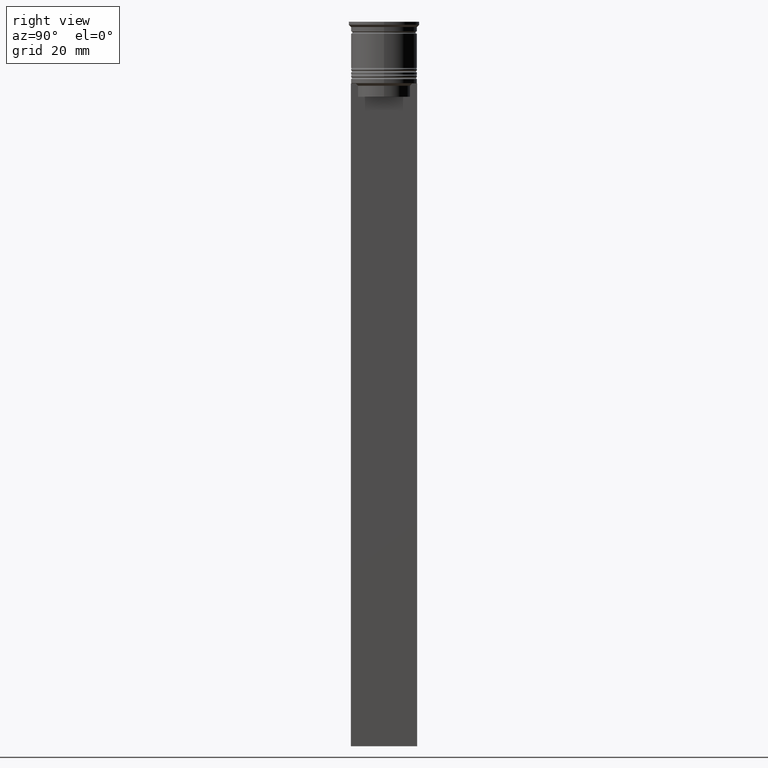
[diagram: clean part render]
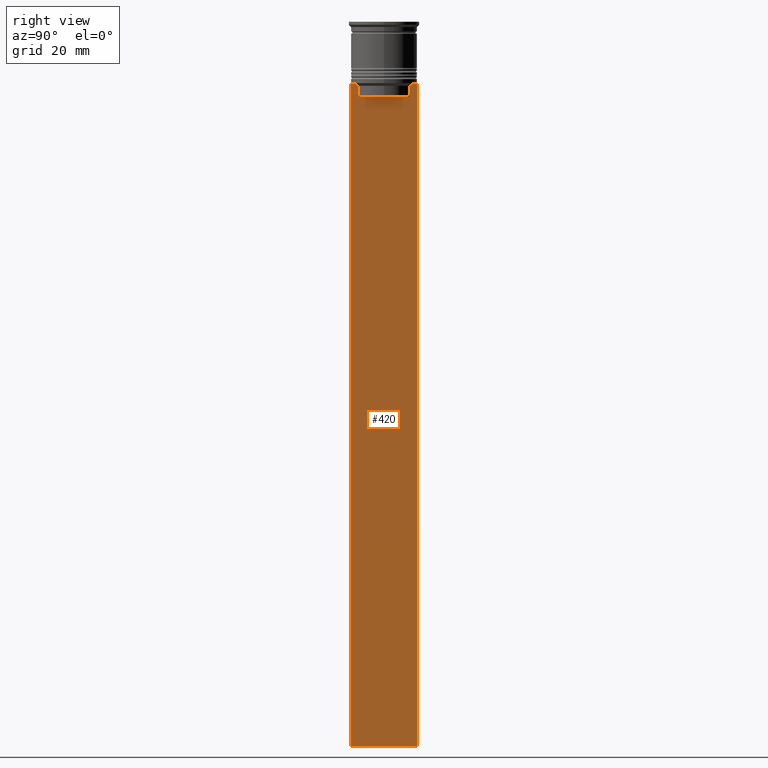
[diagram: same view with one face highlighted and labeled with its STEP entity id]
A machine part, right view. The second image highlights one B-rep face of the part: STEP entity #420.
In plain terms, the highlighted planar face has unit normal (-1, 0, 0).
Its self-contained STEP definition (entity closure, byte-faithful):
#15 = CARTESIAN_POINT ( 'NONE',  ( 0.5000000000000000000, 5.899999999999998579, -17.00000000000000000 ) ) ;
#18 = DIRECTION ( 'NONE',  ( -1.000000000000000000, 0.000000000000000000, 0.000000000000000000 ) ) ;
#20 = CARTESIAN_POINT ( 'NONE',  ( 0.5000000000000000000, -6.213239311785844876, -14.16668851110870087 ) ) ;
#115 = CARTESIAN_POINT ( 'NONE',  ( 0.5000000000000000000, -7.499999999999999112, -163.9999999999999716 ) ) ;
#116 = VECTOR ( 'NONE', #2367, 1000.000000000000000 ) ;
#171 = CARTESIAN_POINT ( 'NONE',  ( 0.5000000000000000000, -7.499999999999999112, 1.033296378372908997 ) ) ;
#180 = CARTESIAN_POINT ( 'NONE',  ( 0.5000000000000000000, 7.500000000000002665, -14.00000000000000178 ) ) ;
#215 = CARTESIAN_POINT ( 'NONE',  ( 0.5000000000000000000, -5.878775382679625849, -17.00000000000000000 ) ) ;
#222 = LINE ( 'NONE', #1204, #2312 ) ;
#225 = CARTESIAN_POINT ( 'NONE',  ( 0.5000000000000000000, -7.383088784512886527, -14.00000000000000178 ) ) ;
#245 = DIRECTION ( 'NONE',  ( 0.000000000000000000, -1.000000000000000000, 0.000000000000000000 ) ) ;
#250 = EDGE_CURVE ( 'NONE', #1683, #279, #388, .T. ) ;
#279 = VERTEX_POINT ( 'NONE', #555 ) ;
#316 = ORIENTED_EDGE ( 'NONE', *, *, #2303, .T. ) ;
#335 = VERTEX_POINT ( 'NONE', #1325 ) ;
#345 = DIRECTION ( 'NONE',  ( 0.000000000000000000, -1.000000000000000000, 0.000000000000000000 ) ) ;
#360 = CARTESIAN_POINT ( 'NONE',  ( 0.5000000000000000000, -7.499999999999999112, -14.00000000000000178 ) ) ;
#381 = DIRECTION ( 'NONE',  ( 0.000000000000000000, 0.000000000000000000, -1.000000000000000000 ) ) ;
#388 = LINE ( 'NONE', #2266, #2120 ) ;
#393 = CARTESIAN_POINT ( 'NONE',  ( 0.5000000000000000000, -6.046019991840948293, -14.33335703538585726 ) ) ;
#420 = ADVANCED_FACE ( 'NONE', ( #2149 ), #425, .F. ) ;
#425 = PLANE ( 'NONE',  #1588 ) ;
#431 = ORIENTED_EDGE ( 'NONE', *, *, #861, .T. ) ;
#449 = VERTEX_POINT ( 'NONE', #655 ) ;
#504 = LINE ( 'NONE', #115, #548 ) ;
#522 = CARTESIAN_POINT ( 'NONE',  ( 0.5000000000000000000, -7.499999999999999112, -163.9999999999999716 ) ) ;
#540 = ORIENTED_EDGE ( 'NONE', *, *, #250, .T. ) ;
#548 = VECTOR ( 'NONE', #2438, 1000.000000000000000 ) ;
#555 = CARTESIAN_POINT ( 'NONE',  ( 0.5000000000000000000, -5.878775382679625849, -14.50000000000000000 ) ) ;
#570 = CARTESIAN_POINT ( 'NONE',  ( 0.5000000000000000000, 6.213239387491007015, -14.16668843563492430 ) ) ;
#591 = EDGE_CURVE ( 'NONE', #1172, #1858, #504, .T. ) ;
#639 = CARTESIAN_POINT ( 'NONE',  ( 0.5000000000000000000, -7.499999999999999112, -14.00000000000000178 ) ) ;
#655 = CARTESIAN_POINT ( 'NONE',  ( 0.5000000000000000000, 6.380438856379706536, -14.00000000000000178 ) ) ;
#685 = ORIENTED_EDGE ( 'NONE', *, *, #2307, .T. ) ;
#834 = CARTESIAN_POINT ( 'NONE',  ( 0.5000000000000000000, -5.878775382679625849, -14.50000000000000000 ) ) ;
#861 = EDGE_CURVE ( 'NONE', #1855, #1683, #1733, .T. ) ;
#922 = LINE ( 'NONE', #1156, #1750 ) ;
#926 = ORIENTED_EDGE ( 'NONE', *, *, #1495, .T. ) ;
#956 = ORIENTED_EDGE ( 'NONE', *, *, #1418, .T. ) ;
#1004 = CARTESIAN_POINT ( 'NONE',  ( 0.5000000000000000000, 7.500000000000002665, 1.033296378372908997 ) ) ;
#1026 = ORIENTED_EDGE ( 'NONE', *, *, #2326, .T. ) ;
#1052 = CARTESIAN_POINT ( 'NONE',  ( 0.5000000000000000000, 7.500000000000002665, -163.9999999999999716 ) ) ;
#1090 = LINE ( 'NONE', #2452, #1873 ) ;
#1140 = LINE ( 'NONE', #360, #2322 ) ;
#1151 = CARTESIAN_POINT ( 'NONE',  ( 0.5000000000000000000, -7.499999999999999112, -14.00000000000000178 ) ) ;
#1156 = CARTESIAN_POINT ( 'NONE',  ( 0.5000000000000000000, 5.878775382679625849, 0.000000000000000000 ) ) ;
#1172 = VERTEX_POINT ( 'NONE', #522 ) ;
#1204 = CARTESIAN_POINT ( 'NONE',  ( 0.5000000000000000000, -7.499999999999999112, -14.00000000000000178 ) ) ;
#1206 = LINE ( 'NONE', #1004, #1642 ) ;
#1247 = ORIENTED_EDGE ( 'NONE', *, *, #1861, .T. ) ;
#1325 = CARTESIAN_POINT ( 'NONE',  ( 0.5000000000000000000, -6.380438856379706536, -14.00000000000000178 ) ) ;
#1363 = VERTEX_POINT ( 'NONE', #1151 ) ;
#1415 = EDGE_CURVE ( 'NONE', #279, #335, #1481, .T. ) ;
#1418 = EDGE_CURVE ( 'NONE', #335, #1994, #222, .T. ) ;
#1427 = ORIENTED_EDGE ( 'NONE', *, *, #1415, .T. ) ;
#1428 = VECTOR ( 'NONE', #245, 1000.000000000000000 ) ;
#1481 = B_SPLINE_CURVE_WITH_KNOTS ( 'NONE', 3,
 ( #834, #393, #20, #1593 ),
 .UNSPECIFIED., .F., .F.,
 ( 4, 4 ),
 ( 0.02765270321082434479, 0.02836198271238431559 ),
 .UNSPECIFIED. ) ;
#1495 = EDGE_CURVE ( 'NONE', #2223, #2416, #1090, .T. ) ;
#1508 = CARTESIAN_POINT ( 'NONE',  ( 0.5000000000000000000, 6.380438856379706536, -14.00000000000000178 ) ) ;
#1524 = B_SPLINE_CURVE_WITH_KNOTS ( 'NONE', 3,
 ( #1508, #570, #2283, #1910 ),
 .UNSPECIFIED., .F., .F.,
 ( 4, 4 ),
 ( 0.01087727669788152163, 0.01158556069794289788 ),
 .UNSPECIFIED. ) ;
#1553 = VECTOR ( 'NONE', #1698, 1000.000000000000000 ) ;
#1559 = CARTESIAN_POINT ( 'NONE',  ( 0.5000000000000000000, 7.383088784512886527, -14.00000000000000178 ) ) ;
#1573 = ORIENTED_EDGE ( 'NONE', *, *, #591, .T. ) ;
#1578 = DIRECTION ( 'NONE',  ( 0.000000000000000000, 0.000000000000000000, -1.000000000000000000 ) ) ;
#1588 = AXIS2_PLACEMENT_3D ( 'NONE', #2372, #18, #1751 ) ;
#1593 = CARTESIAN_POINT ( 'NONE',  ( 0.5000000000000000000, -6.380438856379706536, -14.00000000000000178 ) ) ;
#1601 = CARTESIAN_POINT ( 'NONE',  ( 0.5000000000000000000, 5.878775382679625849, -17.00000000000000000 ) ) ;
#1608 = ORIENTED_EDGE ( 'NONE', *, *, #2024, .F. ) ;
#1613 = LINE ( 'NONE', #639, #116 ) ;
#1626 = CARTESIAN_POINT ( 'NONE',  ( 0.5000000000000000000, 5.878775382679625849, -14.50000000000000000 ) ) ;
#1642 = VECTOR ( 'NONE', #1578, 1000.000000000000000 ) ;
#1683 = VERTEX_POINT ( 'NONE', #215 ) ;
#1698 = DIRECTION ( 'NONE',  ( 0.000000000000000000, 0.000000000000000000, -1.000000000000000000 ) ) ;
#1733 = LINE ( 'NONE', #15, #1428 ) ;
#1750 = VECTOR ( 'NONE', #381, 1000.000000000000000 ) ;
#1751 = DIRECTION ( 'NONE',  ( 0.000000000000000000, 0.000000000000000000, 1.000000000000000000 ) ) ;
#1855 = VERTEX_POINT ( 'NONE', #1601 ) ;
#1858 = VERTEX_POINT ( 'NONE', #1052 ) ;
#1861 = EDGE_CURVE ( 'NONE', #2416, #449, #1613, .T. ) ;
#1873 = VECTOR ( 'NONE', #2232, 1000.000000000000000 ) ;
#1876 = VERTEX_POINT ( 'NONE', #1626 ) ;
#1889 = LINE ( 'NONE', #171, #1553 ) ;
#1910 = CARTESIAN_POINT ( 'NONE',  ( 0.5000000000000000000, 5.878775382679625849, -14.50000000000000000 ) ) ;
#1994 = VERTEX_POINT ( 'NONE', #225 ) ;
#2024 = EDGE_CURVE ( 'NONE', #2223, #1858, #1206, .T. ) ;
#2120 = VECTOR ( 'NONE', #2476, 1000.000000000000000 ) ;
#2149 = FACE_OUTER_BOUND ( 'NONE', #2323, .T. ) ;
#2223 = VERTEX_POINT ( 'NONE', #180 ) ;
#2232 = DIRECTION ( 'NONE',  ( 0.000000000000000000, -1.000000000000000000, 0.000000000000000000 ) ) ;
#2266 = CARTESIAN_POINT ( 'NONE',  ( 0.5000000000000000000, -5.878775382679625849, 0.000000000000000000 ) ) ;
#2270 = EDGE_CURVE ( 'NONE', #1876, #1855, #922, .T. ) ;
#2283 = CARTESIAN_POINT ( 'NONE',  ( 0.5000000000000000000, 6.046020074006152711, -14.33335695351623151 ) ) ;
#2287 = ORIENTED_EDGE ( 'NONE', *, *, #2270, .T. ) ;
#2303 = EDGE_CURVE ( 'NONE', #1994, #1363, #1140, .T. ) ;
#2307 = EDGE_CURVE ( 'NONE', #1363, #1172, #1889, .T. ) ;
#2312 = VECTOR ( 'NONE', #2362, 1000.000000000000000 ) ;
#2322 = VECTOR ( 'NONE', #345, 1000.000000000000000 ) ;
#2323 = EDGE_LOOP ( 'NONE', ( #1247, #1026, #2287, #431, #540, #1427, #956, #316, #685, #1573, #1608, #926 ) ) ;
#2326 = EDGE_CURVE ( 'NONE', #449, #1876, #1524, .T. ) ;
#2362 = DIRECTION ( 'NONE',  ( 0.000000000000000000, -1.000000000000000000, 0.000000000000000000 ) ) ;
#2367 = DIRECTION ( 'NONE',  ( 0.000000000000000000, -1.000000000000000000, 0.000000000000000000 ) ) ;
#2372 = CARTESIAN_POINT ( 'NONE',  ( 0.5000000000000000000, -7.499999999999999112, 1.033296378372908997 ) ) ;
#2416 = VERTEX_POINT ( 'NONE', #1559 ) ;
#2438 = DIRECTION ( 'NONE',  ( 0.000000000000000000, 1.000000000000000000, 0.000000000000000000 ) ) ;
#2452 = CARTESIAN_POINT ( 'NONE',  ( 0.5000000000000000000, -7.499999999999999112, -14.00000000000000178 ) ) ;
#2476 = DIRECTION ( 'NONE',  ( -0.000000000000000000, -0.000000000000000000, 1.000000000000000000 ) ) ;